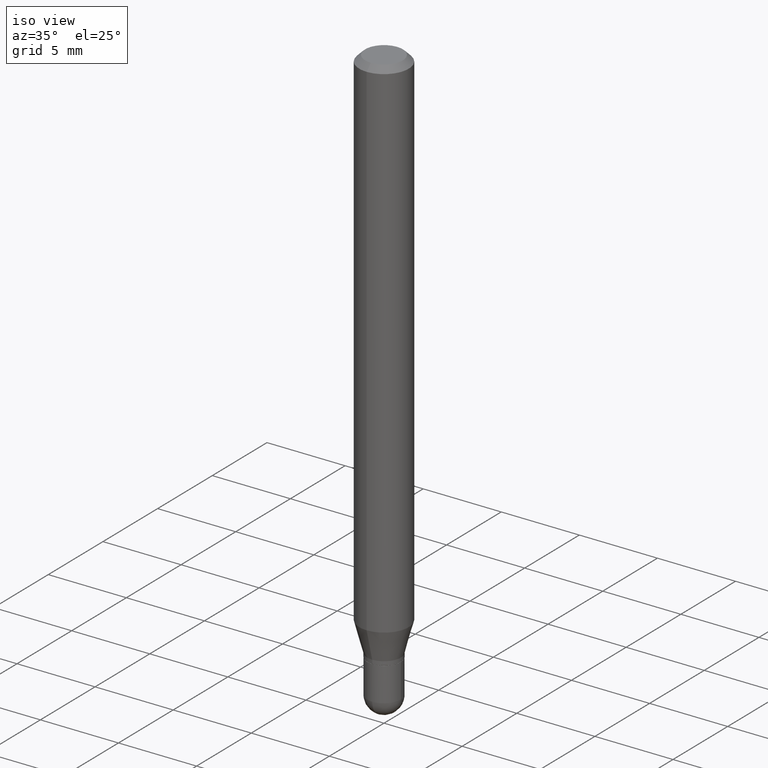
[diagram: clean part render]
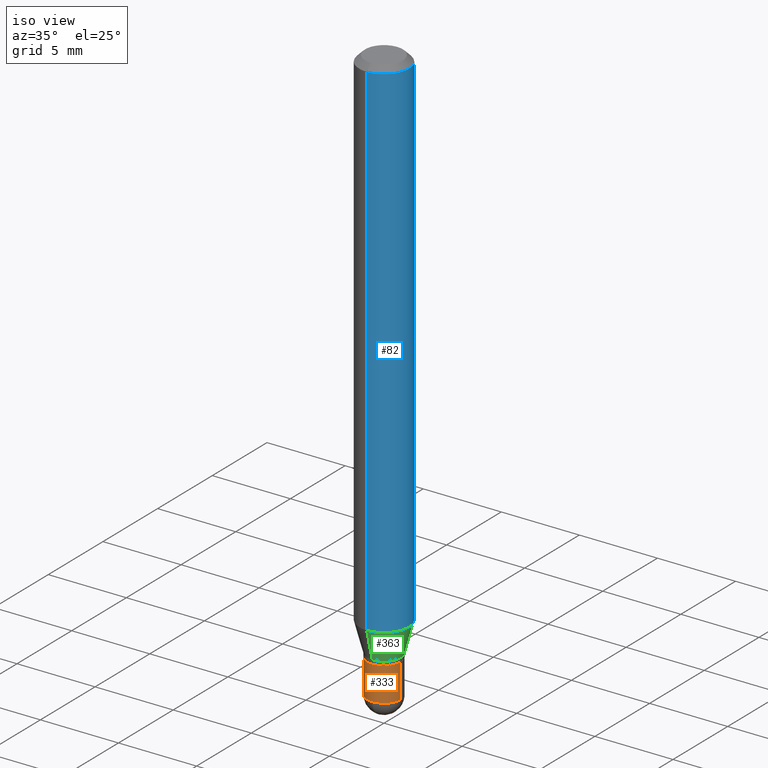
[diagram: same view with three faces highlighted in distinct colors, each labeled with its STEP entity id]
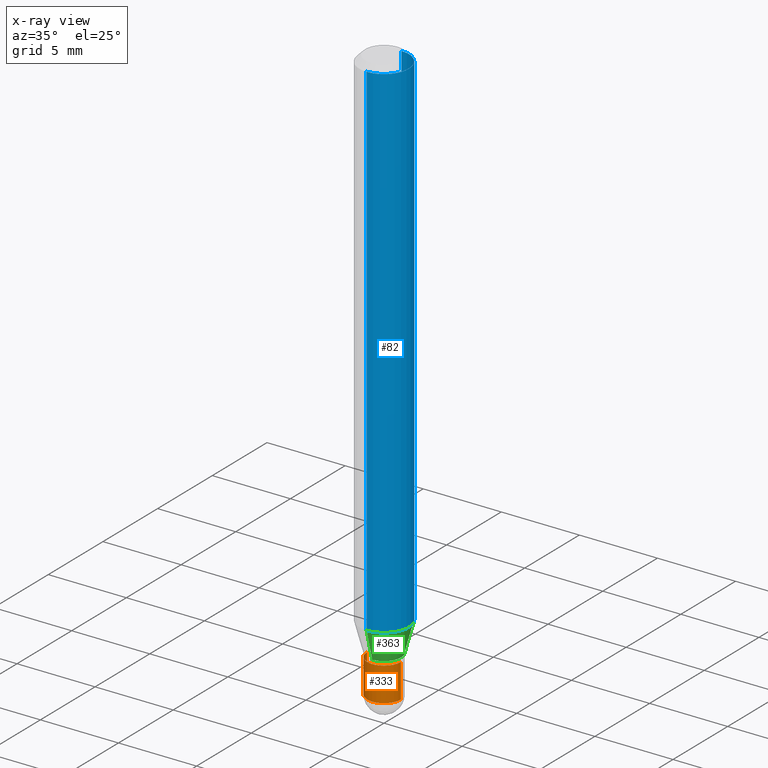
[diagram: x-ray of the same camera — body ghosted, the three highlighted faces saturated]
A machine part, iso view with three faces highlighted in distinct colors.
The next image is the same camera in x-ray (body ghosted, the three faces saturated) — at least one of them is partly hidden behind the body in this view.
Their STEP definitions:

[orange] entity #333 — the highlighted cylindrical surface (edge-blend (fillet) strip) has radius 1.0795 mm, axis along (-0, 0, 1).
#23 = VERTEX_POINT ( 'NONE', #362 ) ;
#58 = VERTEX_POINT ( 'NONE', #509 ) ;
#67 = DIRECTION ( 'NONE',  ( 1.000000000000000000, -6.982962677686266711E-15, 4.876176775795935793E-29 ) ) ;
#74 = EDGE_CURVE ( 'NONE', #373, #23, #224, .T. ) ;
#88 = AXIS2_PLACEMENT_3D ( 'NONE', #106, #309, #305 ) ;
#99 = ORIENTED_EDGE ( 'NONE', *, *, #175, .F. ) ;
#106 = CARTESIAN_POINT ( 'NONE',  ( 3.564270785014837509E-29, -5.088834051363884851E-15, -1.457500000000000240 ) ) ;
#114 = CIRCLE ( 'NONE', #88, 0.04250000000000000999 ) ;
#115 = CARTESIAN_POINT ( 'NONE',  ( 0.04250000000000000999, -5.236349137930008608E-15, -1.457500000000000240 ) ) ;
#123 = AXIS2_PLACEMENT_3D ( 'NONE', #512, #237, #67 ) ;
#130 = LINE ( 'NONE', #442, #293 ) ;
#148 = EDGE_LOOP ( 'NONE', ( #99, #347, #440, #250, #464 ) ) ;
#175 = EDGE_CURVE ( 'NONE', #373, #58, #130, .T. ) ;
#191 = CARTESIAN_POINT ( 'NONE',  ( -0.04250000000000000999, -4.637592561430298716E-15, -1.457500000000000240 ) ) ;
#205 = DIRECTION ( 'NONE',  ( -2.445468806185136597E-29, 3.491481338843145583E-15, 1.000000000000000000 ) ) ;
#224 = CIRCLE ( 'NONE', #399, 0.04250000000000000999 ) ;
#231 = FACE_OUTER_BOUND ( 'NONE', #148, .T. ) ;
#237 = DIRECTION ( 'NONE',  ( -2.445468806185136597E-29, 3.491481338843145583E-15, 1.000000000000000000 ) ) ;
#250 = ORIENTED_EDGE ( 'NONE', *, *, #335, .T. ) ;
#255 = DIRECTION ( 'NONE',  ( -2.445468806185136877E-29, 3.491481338843145188E-15, 1.000000000000000000 ) ) ;
#261 = DIRECTION ( 'NONE',  ( -2.445468806185136877E-29, 3.491481338843145188E-15, 1.000000000000000000 ) ) ;
#280 = CARTESIAN_POINT ( 'NONE',  ( 3.564270785014837509E-29, -5.088834051363884851E-15, -1.457500000000000240 ) ) ;
#293 = VECTOR ( 'NONE', #255, 39.37007874015748143 ) ;
#305 = DIRECTION ( 'NONE',  ( 1.000000000000000000, -6.982962677686273810E-15, 0.000000000000000000 ) ) ;
#309 = DIRECTION ( 'NONE',  ( -2.445468806185136597E-29, 3.491481338843145583E-15, 1.000000000000000000 ) ) ;
#316 = DIRECTION ( 'NONE',  ( 1.000000000000000000, -6.982962677686273810E-15, 0.000000000000000000 ) ) ;
#333 = ADVANCED_FACE ( 'NONE', ( #231 ), #349, .T. ) ;
#335 = EDGE_CURVE ( 'NONE', #350, #443, #421, .T. ) ;
#342 = DIRECTION ( 'NONE',  ( 1.000000000000000000, -6.982962677686276177E-15, 0.000000000000000000 ) ) ;
#347 = ORIENTED_EDGE ( 'NONE', *, *, #74, .T. ) ;
#349 = CYLINDRICAL_SURFACE ( 'NONE', #123, 0.04250000000000000999 ) ;
#350 = VERTEX_POINT ( 'NONE', #115 ) ;
#351 = DIRECTION ( 'NONE',  ( -2.445468806185136597E-29, 3.491481338843145583E-15, 1.000000000000000000 ) ) ;
#362 = CARTESIAN_POINT ( 'NONE',  ( -2.967759138016310534E-16, -0.04250000000000514477, -1.457500000000000018 ) ) ;
#366 = VECTOR ( 'NONE', #261, 39.37007874015748143 ) ;
#373 = VERTEX_POINT ( 'NONE', #191 ) ;
#378 = EDGE_CURVE ( 'NONE', #23, #350, #114, .T. ) ;
#388 = CARTESIAN_POINT ( 'NONE',  ( 0.04249999999999999611, -5.087088310694462559E-15, -1.372000000000000108 ) ) ;
#393 = EDGE_CURVE ( 'NONE', #58, #443, #478, .T. ) ;
#399 = AXIS2_PLACEMENT_3D ( 'NONE', #280, #205, #316 ) ;
#415 = AXIS2_PLACEMENT_3D ( 'NONE', #505, #351, #342 ) ;
#421 = LINE ( 'NONE', #470, #366 ) ;
#440 = ORIENTED_EDGE ( 'NONE', *, *, #378, .T. ) ;
#442 = CARTESIAN_POINT ( 'NONE',  ( -0.04250000000000000999, 3.019806626980426500E-16, -2.090547413358335560E-30 ) ) ;
#443 = VERTEX_POINT ( 'NONE', #388 ) ;
#464 = ORIENTED_EDGE ( 'NONE', *, *, #393, .F. ) ;
#470 = CARTESIAN_POINT ( 'NONE',  ( 0.04250000000000000999, -2.967759138016664042E-16, 2.072375129713273202E-30 ) ) ;
#478 = CIRCLE ( 'NONE', #415, 0.04249999999999999611 ) ;
#505 = CARTESIAN_POINT ( 'NONE',  ( 3.355183202086007133E-29, -4.790312396892795908E-15, -1.372000000000000108 ) ) ;
#509 = CARTESIAN_POINT ( 'NONE',  ( -0.04249999999999999611, -4.637592561430297927E-15, -1.372000000000000108 ) ) ;
#512 = CARTESIAN_POINT ( 'NONE',  ( 0.000000000000000000, 0.000000000000000000, 0.000000000000000000 ) ) ;

[blue] entity #82 — the highlighted cylindrical surface (edge-blend (fillet) strip) has radius 1.5875 mm, axis along (-0, 0, 1).
#3 = LINE ( 'NONE', #79, #253 ) ;
#25 = ORIENTED_EDGE ( 'NONE', *, *, #77, .F. ) ;
#26 = DIRECTION ( 'NONE',  ( -6.982962677686265922E-15, -1.000000000000000000, 3.483106191921935554E-15 ) ) ;
#29 = DIRECTION ( 'NONE',  ( -2.445394468719780989E-29, 3.491587794324560733E-15, 1.000000000000000000 ) ) ;
#32 = AXIS2_PLACEMENT_3D ( 'NONE', #307, #29, #112 ) ;
#44 = FACE_OUTER_BOUND ( 'NONE', #113, .T. ) ;
#54 = AXIS2_PLACEMENT_3D ( 'NONE', #200, #147, #26 ) ;
#77 = EDGE_CURVE ( 'NONE', #303, #171, #273, .T. ) ;
#79 = CARTESIAN_POINT ( 'NONE',  ( 4.440892098500625669E-16, 0.06250000000000000000, -2.182242371452850211E-16 ) ) ;
#82 = ADVANCED_FACE ( 'NONE', ( #44 ), #506, .T. ) ;
#83 = DIRECTION ( 'NONE',  ( -2.445394468719780989E-29, 3.491587794324560733E-15, 1.000000000000000000 ) ) ;
#98 = EDGE_CURVE ( 'NONE', #326, #142, #3, .T. ) ;
#112 = DIRECTION ( 'NONE',  ( -6.982962677686265922E-15, -1.000000000000000000, 4.370956789862821150E-15 ) ) ;
#113 = EDGE_LOOP ( 'NONE', ( #186, #184, #145, #25 ) ) ;
#142 = VERTEX_POINT ( 'NONE', #157 ) ;
#145 = ORIENTED_EDGE ( 'NONE', *, *, #331, .F. ) ;
#147 = DIRECTION ( 'NONE',  ( -2.445394468719780989E-29, 3.491587794324560733E-15, 1.000000000000000000 ) ) ;
#150 = CARTESIAN_POINT ( 'NONE',  ( 0.000000000000000000, 0.000000000000000000, 0.000000000000000000 ) ) ;
#157 = CARTESIAN_POINT ( 'NONE',  ( 4.440892098500942692E-16, 0.06249999999999995143, -0.01500000000000054588 ) ) ;
#171 = VERTEX_POINT ( 'NONE', #327 ) ;
#184 = ORIENTED_EDGE ( 'NONE', *, *, #98, .T. ) ;
#186 = ORIENTED_EDGE ( 'NONE', *, *, #416, .T. ) ;
#200 = CARTESIAN_POINT ( 'NONE',  ( 3.668091703079751796E-31, -5.237381691486955188E-17, -0.01500000000000032904 ) ) ;
#211 = CIRCLE ( 'NONE', #32, 0.06250000000000000000 ) ;
#235 = CARTESIAN_POINT ( 'NONE',  ( 4.440892098500941706E-16, 0.06249999999999553135, -1.287358983848623017 ) ) ;
#244 = DIRECTION ( 'NONE',  ( -2.445394468719780989E-29, 3.491587794324560733E-15, 1.000000000000000000 ) ) ;
#253 = VECTOR ( 'NONE', #244, 39.37007874015748143 ) ;
#259 = VECTOR ( 'NONE', #394, 39.37007874015748143 ) ;
#273 = LINE ( 'NONE', #311, #259 ) ;
#276 = AXIS2_PLACEMENT_3D ( 'NONE', #150, #83, #471 ) ;
#303 = VERTEX_POINT ( 'NONE', #405 ) ;
#307 = CARTESIAN_POINT ( 'NONE',  ( 3.148100538360140027E-29, -4.494926914919920773E-15, -1.287358983848622795 ) ) ;
#311 = CARTESIAN_POINT ( 'NONE',  ( -4.364351673553916201E-16, -0.06250000000000000000, 2.182242371452850211E-16 ) ) ;
#326 = VERTEX_POINT ( 'NONE', #235 ) ;
#327 = CARTESIAN_POINT ( 'NONE',  ( -4.364351673553912750E-16, -0.06250000000000005551, -0.01500000000000011047 ) ) ;
#331 = EDGE_CURVE ( 'NONE', #171, #142, #408, .T. ) ;
#394 = DIRECTION ( 'NONE',  ( -2.445394468719780989E-29, 3.491587794324560733E-15, 1.000000000000000000 ) ) ;
#405 = CARTESIAN_POINT ( 'NONE',  ( -4.364351673553598192E-16, -0.06250000000000445477, -1.287358983848622573 ) ) ;
#408 = CIRCLE ( 'NONE', #54, 0.06250000000000000000 ) ;
#416 = EDGE_CURVE ( 'NONE', #303, #326, #211, .T. ) ;
#471 = DIRECTION ( 'NONE',  ( -6.982962677686265922E-15, -1.000000000000000000, 3.491587794324560338E-15 ) ) ;
#506 = CYLINDRICAL_SURFACE ( 'NONE', #276, 0.06250000000000000000 ) ;

[green] entity #363 — the highlighted conical surface has half-angle 15 deg.
#29 = DIRECTION ( 'NONE',  ( -2.445394468719780989E-29, 3.491587794324560733E-15, 1.000000000000000000 ) ) ;
#32 = AXIS2_PLACEMENT_3D ( 'NONE', #307, #29, #112 ) ;
#78 = CARTESIAN_POINT ( 'NONE',  ( 3.019806626980753384E-16, 0.04249999999999517358, -1.362000000000000766 ) ) ;
#103 = CARTESIAN_POINT ( 'NONE',  ( 3.730349362740847299E-16, 0.04249999999999517358, -1.362000000000000766 ) ) ;
#112 = DIRECTION ( 'NONE',  ( -6.982962677686265922E-15, -1.000000000000000000, 4.370956789862821150E-15 ) ) ;
#125 = DIRECTION ( 'NONE',  ( 1.839019923739598738E-15, 0.2588190451025247363, 0.9659258262890673130 ) ) ;
#151 = CARTESIAN_POINT ( 'NONE',  ( 3.330627266396342627E-29, -4.755542575870053124E-15, -1.362000000000000322 ) ) ;
#153 = VECTOR ( 'NONE', #125, 39.37007874015748854 ) ;
#156 = FACE_OUTER_BOUND ( 'NONE', #219, .T. ) ;
#211 = CIRCLE ( 'NONE', #32, 0.06250000000000000000 ) ;
#219 = EDGE_LOOP ( 'NONE', ( #265, #414, #227, #402 ) ) ;
#227 = ORIENTED_EDGE ( 'NONE', *, *, #416, .F. ) ;
#233 = LINE ( 'NONE', #500, #369 ) ;
#235 = CARTESIAN_POINT ( 'NONE',  ( 4.440892098500941706E-16, 0.06249999999999553135, -1.287358983848623017 ) ) ;
#262 = VERTEX_POINT ( 'NONE', #497 ) ;
#263 = DIRECTION ( 'NONE',  ( -6.982962677686265133E-15, -1.000000000000000000, 6.427877632151217642E-15 ) ) ;
#265 = ORIENTED_EDGE ( 'NONE', *, *, #420, .T. ) ;
#266 = DIRECTION ( 'NONE',  ( -2.445394468719780989E-29, 3.491587794324560733E-15, 1.000000000000000000 ) ) ;
#288 = CIRCLE ( 'NONE', #444, 0.04249999999999993366 ) ;
#303 = VERTEX_POINT ( 'NONE', #405 ) ;
#307 = CARTESIAN_POINT ( 'NONE',  ( 3.148100538360140027E-29, -4.494926914919920773E-15, -1.287358983848622795 ) ) ;
#314 = CONICAL_SURFACE ( 'NONE', #429, 0.04249999999999993366, 0.2617993877991500740 ) ;
#317 = DIRECTION ( 'NONE',  ( -2.445394468719780989E-29, 3.491587794324560733E-15, 1.000000000000000000 ) ) ;
#326 = VERTEX_POINT ( 'NONE', #235 ) ;
#363 = ADVANCED_FACE ( 'NONE', ( #156 ), #314, .T. ) ;
#369 = VECTOR ( 'NONE', #384, 39.37007874015748854 ) ;
#384 = DIRECTION ( 'NONE',  ( -1.807323732225328562E-15, -0.2588190451025179639, 0.9659258262890690894 ) ) ;
#386 = CARTESIAN_POINT ( 'NONE',  ( 3.330627266396342627E-29, -4.755542575870053124E-15, -1.362000000000000322 ) ) ;
#387 = VERTEX_POINT ( 'NONE', #103 ) ;
#402 = ORIENTED_EDGE ( 'NONE', *, *, #422, .F. ) ;
#405 = CARTESIAN_POINT ( 'NONE',  ( -4.364351673553598192E-16, -0.06250000000000445477, -1.287358983848622573 ) ) ;
#414 = ORIENTED_EDGE ( 'NONE', *, *, #490, .T. ) ;
#416 = EDGE_CURVE ( 'NONE', #303, #326, #211, .T. ) ;
#420 = EDGE_CURVE ( 'NONE', #262, #387, #288, .T. ) ;
#422 = EDGE_CURVE ( 'NONE', #262, #303, #233, .T. ) ;
#425 = DIRECTION ( 'NONE',  ( -6.982962677686265133E-15, -1.000000000000000000, 6.427877632151217642E-15 ) ) ;
#429 = AXIS2_PLACEMENT_3D ( 'NONE', #386, #317, #263 ) ;
#444 = AXIS2_PLACEMENT_3D ( 'NONE', #151, #266, #425 ) ;
#481 = LINE ( 'NONE', #78, #153 ) ;
#490 = EDGE_CURVE ( 'NONE', #387, #326, #481, .T. ) ;
#497 = CARTESIAN_POINT ( 'NONE',  ( -2.967759138016324832E-16, -0.04250000000000468681, -1.362000000000000099 ) ) ;
#500 = CARTESIAN_POINT ( 'NONE',  ( -2.967759138016324832E-16, -0.04250000000000468681, -1.362000000000000099 ) ) ;